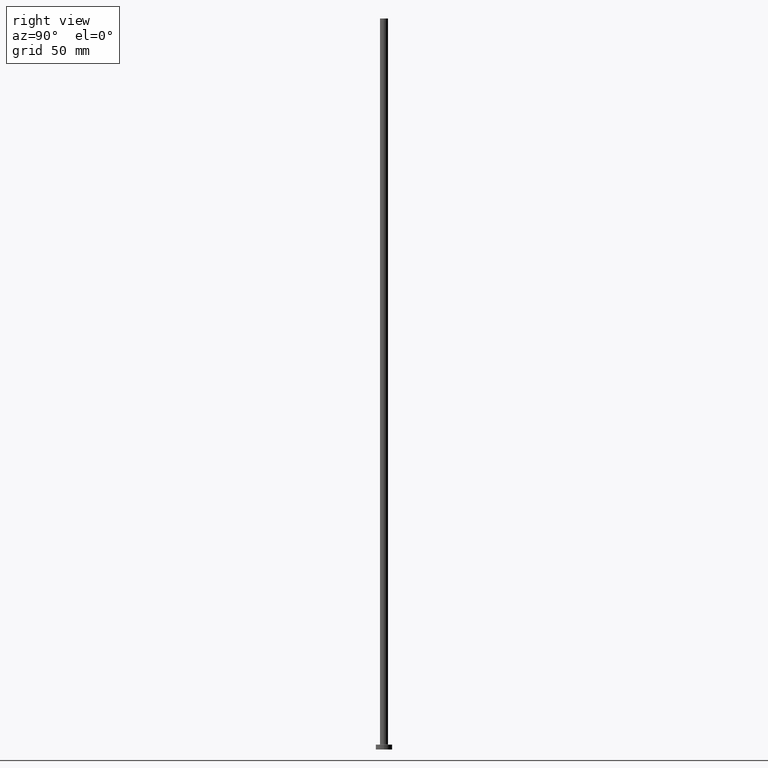
[diagram: clean part render]
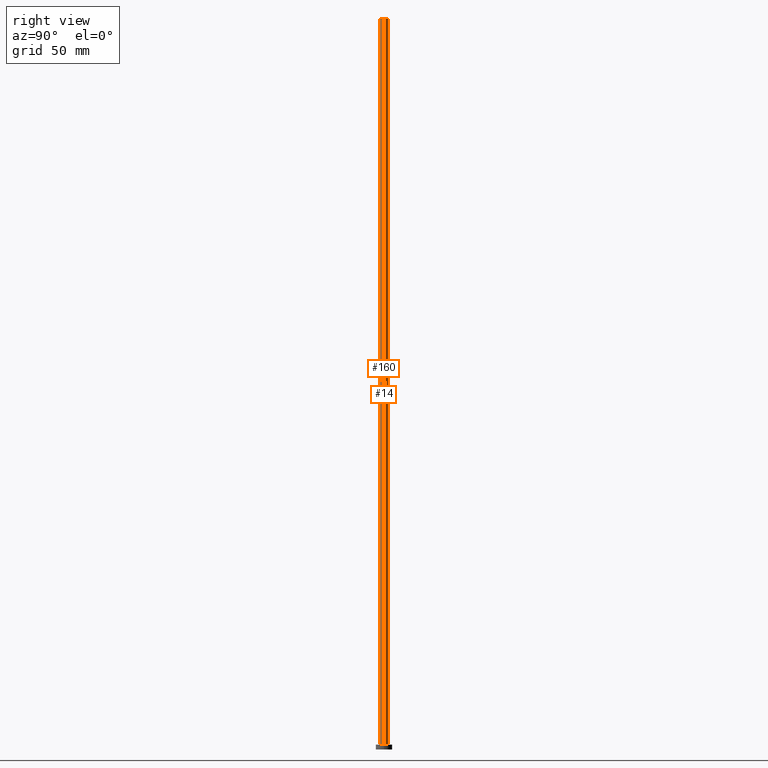
[diagram: same view with one multi-face feature highlighted, each face labeled with its STEP entity id]
A machine part, right view. The highlighted faces form ONE feature: a constant-radius fillet chain: 2 tangent blend faces with common blend radius 2.5 mm. The faces share edges in the B-rep.
Their STEP definitions:
[1] entity #14 (Cylinder):
#7 = CARTESIAN_POINT ( 'NONE',  ( 0.000000000000000000, 0.000000000000000000, 450.0000000000000000 ) ) ;
#10 = ORIENTED_EDGE ( 'NONE', *, *, #78, .F. ) ;
#11 = CYLINDRICAL_SURFACE ( 'NONE', #367, 2.500000000000000000 ) ;
#12 = AXIS2_PLACEMENT_3D ( 'NONE', #354, #447, #208 ) ;
#14 = ADVANCED_FACE ( 'NONE', ( #201 ), #11, .T. ) ;
#29 = DIRECTION ( 'NONE',  ( -0.000000000000000000, -0.000000000000000000, -1.000000000000000000 ) ) ;
#46 = VERTEX_POINT ( 'NONE', #319 ) ;
#50 = ORIENTED_EDGE ( 'NONE', *, *, #212, .F. ) ;
#62 = CARTESIAN_POINT ( 'NONE',  ( -2.500000000000000000, 0.000000000000000000, 3.300000000000025135 ) ) ;
#64 = CARTESIAN_POINT ( 'NONE',  ( -2.500000000000000000, 0.000000000000000000, 450.0000000000000000 ) ) ;
#70 = EDGE_CURVE ( 'NONE', #360, #46, #145, .T. ) ;
#71 = CARTESIAN_POINT ( 'NONE',  ( 0.000000000000000000, 0.000000000000000000, 3.300000000000025135 ) ) ;
#72 = AXIS2_PLACEMENT_3D ( 'NONE', #71, #250, #395 ) ;
#78 = EDGE_CURVE ( 'NONE', #364, #169, #141, .T. ) ;
#80 = CARTESIAN_POINT ( 'NONE',  ( -2.500000000000000000, 0.000000000000000000, 450.0000000000000000 ) ) ;
#124 = DIRECTION ( 'NONE',  ( -0.000000000000000000, -0.000000000000000000, -1.000000000000000000 ) ) ;
#131 = CIRCLE ( 'NONE', #12, 2.500000000000000000 ) ;
#132 = EDGE_CURVE ( 'NONE', #46, #169, #383, .T. ) ;
#139 = DIRECTION ( 'NONE',  ( -0.000000000000000000, -0.000000000000000000, -1.000000000000000000 ) ) ;
#141 = LINE ( 'NONE', #64, #318 ) ;
#145 = LINE ( 'NONE', #427, #232 ) ;
#169 = VERTEX_POINT ( 'NONE', #62 ) ;
#191 = EDGE_LOOP ( 'NONE', ( #50, #329, #424, #10 ) ) ;
#199 = CARTESIAN_POINT ( 'NONE',  ( 2.500000000000000000, 3.061616997868383141E-16, 450.0000000000000000 ) ) ;
#201 = FACE_OUTER_BOUND ( 'NONE', #191, .T. ) ;
#208 = DIRECTION ( 'NONE',  ( 1.000000000000000000, 0.000000000000000000, 0.000000000000000000 ) ) ;
#212 = EDGE_CURVE ( 'NONE', #360, #364, #131, .T. ) ;
#232 = VECTOR ( 'NONE', #29, 1000.000000000000000 ) ;
#250 = DIRECTION ( 'NONE',  ( 0.000000000000000000, 0.000000000000000000, 1.000000000000000000 ) ) ;
#318 = VECTOR ( 'NONE', #139, 1000.000000000000000 ) ;
#319 = CARTESIAN_POINT ( 'NONE',  ( 2.500000000000000000, 3.061616997868383141E-16, 3.300000000000025135 ) ) ;
#329 = ORIENTED_EDGE ( 'NONE', *, *, #70, .T. ) ;
#354 = CARTESIAN_POINT ( 'NONE',  ( 0.000000000000000000, 0.000000000000000000, 450.0000000000000000 ) ) ;
#360 = VERTEX_POINT ( 'NONE', #199 ) ;
#364 = VERTEX_POINT ( 'NONE', #80 ) ;
#367 = AXIS2_PLACEMENT_3D ( 'NONE', #7, #124, #406 ) ;
#383 = CIRCLE ( 'NONE', #72, 2.500000000000000000 ) ;
#395 = DIRECTION ( 'NONE',  ( 1.000000000000000000, 0.000000000000000000, 0.000000000000000000 ) ) ;
#406 = DIRECTION ( 'NONE',  ( -1.000000000000000000, 0.000000000000000000, 0.000000000000000000 ) ) ;
#424 = ORIENTED_EDGE ( 'NONE', *, *, #132, .T. ) ;
#427 = CARTESIAN_POINT ( 'NONE',  ( 2.500000000000000000, 3.061616997868383141E-16, 450.0000000000000000 ) ) ;
#447 = DIRECTION ( 'NONE',  ( 0.000000000000000000, 0.000000000000000000, 1.000000000000000000 ) ) ;
[2] entity #160 (Cylinder):
#17 = CARTESIAN_POINT ( 'NONE',  ( 0.000000000000000000, 0.000000000000000000, 450.0000000000000000 ) ) ;
#29 = DIRECTION ( 'NONE',  ( -0.000000000000000000, -0.000000000000000000, -1.000000000000000000 ) ) ;
#41 = AXIS2_PLACEMENT_3D ( 'NONE', #215, #358, #87 ) ;
#46 = VERTEX_POINT ( 'NONE', #319 ) ;
#55 = DIRECTION ( 'NONE',  ( 0.000000000000000000, 0.000000000000000000, 1.000000000000000000 ) ) ;
#62 = CARTESIAN_POINT ( 'NONE',  ( -2.500000000000000000, 0.000000000000000000, 3.300000000000025135 ) ) ;
#64 = CARTESIAN_POINT ( 'NONE',  ( -2.500000000000000000, 0.000000000000000000, 450.0000000000000000 ) ) ;
#70 = EDGE_CURVE ( 'NONE', #360, #46, #145, .T. ) ;
#78 = EDGE_CURVE ( 'NONE', #364, #169, #141, .T. ) ;
#80 = CARTESIAN_POINT ( 'NONE',  ( -2.500000000000000000, 0.000000000000000000, 450.0000000000000000 ) ) ;
#82 = EDGE_LOOP ( 'NONE', ( #402, #121, #117, #394 ) ) ;
#87 = DIRECTION ( 'NONE',  ( 1.000000000000000000, 0.000000000000000000, 0.000000000000000000 ) ) ;
#89 = DIRECTION ( 'NONE',  ( 1.000000000000000000, 0.000000000000000000, 0.000000000000000000 ) ) ;
#91 = FACE_OUTER_BOUND ( 'NONE', #82, .T. ) ;
#117 = ORIENTED_EDGE ( 'NONE', *, *, #78, .T. ) ;
#121 = ORIENTED_EDGE ( 'NONE', *, *, #153, .F. ) ;
#135 = CARTESIAN_POINT ( 'NONE',  ( 0.000000000000000000, 0.000000000000000000, 450.0000000000000000 ) ) ;
#137 = CIRCLE ( 'NONE', #41, 2.500000000000000000 ) ;
#139 = DIRECTION ( 'NONE',  ( -0.000000000000000000, -0.000000000000000000, -1.000000000000000000 ) ) ;
#141 = LINE ( 'NONE', #64, #318 ) ;
#145 = LINE ( 'NONE', #427, #232 ) ;
#153 = EDGE_CURVE ( 'NONE', #364, #360, #224, .T. ) ;
#160 = ADVANCED_FACE ( 'NONE', ( #91 ), #349, .T. ) ;
#169 = VERTEX_POINT ( 'NONE', #62 ) ;
#173 = AXIS2_PLACEMENT_3D ( 'NONE', #17, #211, #309 ) ;
#199 = CARTESIAN_POINT ( 'NONE',  ( 2.500000000000000000, 3.061616997868383141E-16, 450.0000000000000000 ) ) ;
#211 = DIRECTION ( 'NONE',  ( -0.000000000000000000, -0.000000000000000000, -1.000000000000000000 ) ) ;
#215 = CARTESIAN_POINT ( 'NONE',  ( 0.000000000000000000, 0.000000000000000000, 3.300000000000025135 ) ) ;
#224 = CIRCLE ( 'NONE', #258, 2.500000000000000000 ) ;
#232 = VECTOR ( 'NONE', #29, 1000.000000000000000 ) ;
#258 = AXIS2_PLACEMENT_3D ( 'NONE', #135, #55, #89 ) ;
#309 = DIRECTION ( 'NONE',  ( -1.000000000000000000, 0.000000000000000000, 0.000000000000000000 ) ) ;
#318 = VECTOR ( 'NONE', #139, 1000.000000000000000 ) ;
#319 = CARTESIAN_POINT ( 'NONE',  ( 2.500000000000000000, 3.061616997868383141E-16, 3.300000000000025135 ) ) ;
#340 = EDGE_CURVE ( 'NONE', #169, #46, #137, .T. ) ;
#349 = CYLINDRICAL_SURFACE ( 'NONE', #173, 2.500000000000000000 ) ;
#358 = DIRECTION ( 'NONE',  ( 0.000000000000000000, 0.000000000000000000, 1.000000000000000000 ) ) ;
#360 = VERTEX_POINT ( 'NONE', #199 ) ;
#364 = VERTEX_POINT ( 'NONE', #80 ) ;
#394 = ORIENTED_EDGE ( 'NONE', *, *, #340, .T. ) ;
#402 = ORIENTED_EDGE ( 'NONE', *, *, #70, .F. ) ;
#427 = CARTESIAN_POINT ( 'NONE',  ( 2.500000000000000000, 3.061616997868383141E-16, 450.0000000000000000 ) ) ;